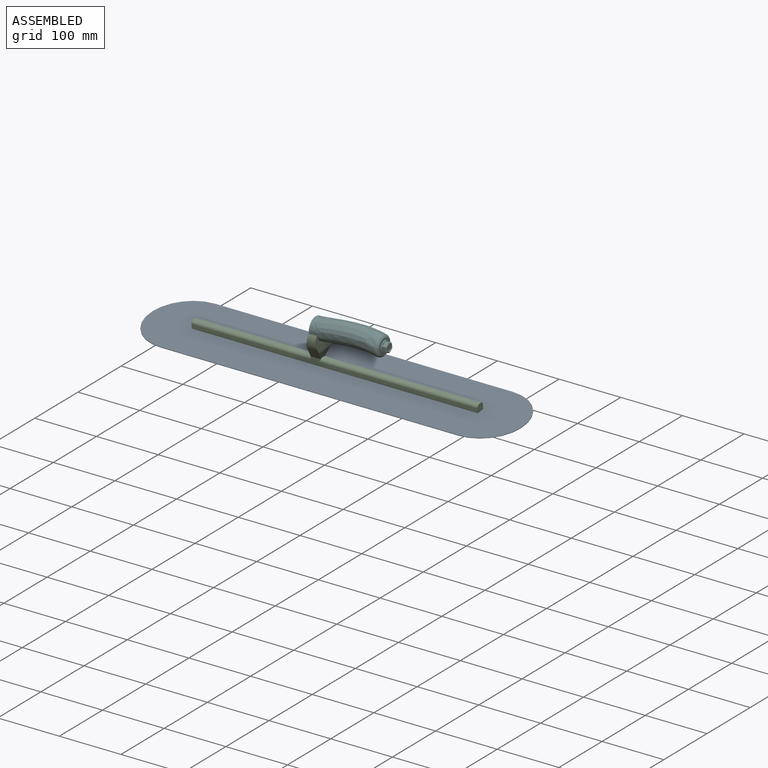
[diagram: assembled view]
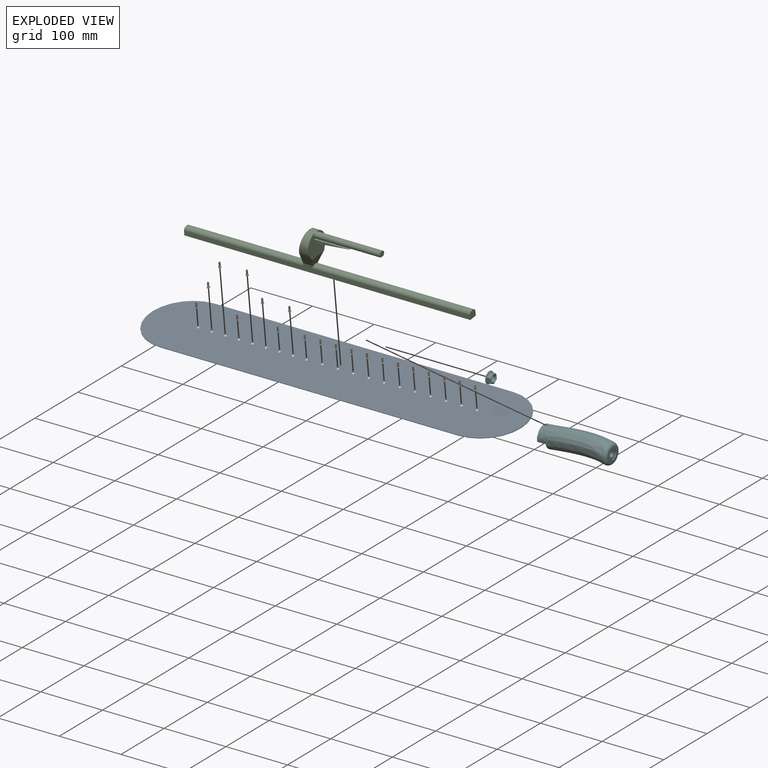
[diagram: exploded view]
GUIDED TOUR — MATED ASSEMBLY (Onshape document fba0291dfb014aeca8c67f5f, AutoMate assembly fba0291dfb014aeca8c67f5f_99a15173166ce8c87920e381_18682e446f5ed5937e0a8708_default)

This assembly has 24 components, labeled P0..P23 below (a component is one placed occurrence of a part; the same part can appear more than once), held together by 24 mates. A mate is a constraint between two components; its type names the relative motion it leaves free:
  FASTENED — locks the two components together rigidly (no relative motion),
  PLANAR — leaves sliding in the plane through the listed point (normal = the listed direction) and rotation about that normal free.
Axis/direction vectors are unit vectors and 'through' points are millimeter coordinates, both in the assembly's world frame.

MATES
  1. FASTENED "Fastened 14": P23 <-> P16, direction (0.000, 0.120, -0.993) through (50.55, 44.57, 3.32) mm
  2. FASTENED "Fastened 15": P6 <-> P16, direction (0.000, 0.120, -0.993) through (75.56, 44.57, 3.32) mm
  3. FASTENED "Fastened 22": P13 <-> P18, direction (-0.985, -0.021, 0.172) through (-32.74, 39.36, 46.24) mm
  4. FASTENED "Fastened 1": P18 <-> P16, direction (0.000, 0.120, -0.993) through (-226.16, 44.46, 4.23) mm
  5. FASTENED "Fastened 4": P9 <-> P16, direction (0.000, 0.120, -0.993) through (-182.09, 44.57, 3.32) mm
  6. FASTENED "Fastened 2": P0 <-> P16, direction (0.000, 0.120, -0.993) through (-226.16, 44.57, 3.32) mm
  7. FASTENED "Fastened 19": P22 <-> P16, direction (0.000, 0.120, -0.993) through (175.87, 44.57, 3.32) mm
  8. FASTENED "Fastened 11": P2 <-> P16, direction (0.000, 0.120, -0.993) through (-24.96, 44.57, 3.32) mm
  9. FASTENED "Fastened 13": P14 <-> P16, direction (0.000, 0.120, -0.993) through (25.45, 44.57, 3.32) mm
  10. FASTENED "Fastened 3": P4 <-> P16, direction (0.000, 0.120, -0.993) through (-203.80, 44.57, 3.32) mm
  11. FASTENED "Fastened 5": P7 <-> P16, direction (0.000, 0.120, -0.993) through (-159.91, 44.57, 3.32) mm
  12. FASTENED "Fastened 18": P20 <-> P16, direction (0.000, 0.120, -0.993) through (150.83, 44.57, 3.32) mm
  13. FASTENED "Fastened 12": P19 <-> P16, direction (0.000, 0.120, -0.993) through (0.18, 44.57, 3.32) mm
  14. FASTENED "Fastened 20": P1 <-> P16, direction (0.000, 0.120, -0.993) through (200.94, 44.57, 3.32) mm
  15. PLANAR "Planar 1": P18 <-> P16, direction (0.000, 0.120, -0.993) through (-0.25, 44.46, 4.23) mm
  16. FASTENED "Fastened 6": P17 <-> P16, direction (0.000, 0.120, -0.993) through (-137.66, 44.57, 3.32) mm
  17. FASTENED "Fastened 17": P15 <-> P16, direction (0.000, 0.120, -0.993) through (125.53, 44.57, 3.32) mm
  18. FASTENED "Fastened 16": P3 <-> P16, direction (0.000, 0.120, -0.993) through (100.86, 44.57, 3.32) mm
  19. FASTENED "Fastened 7": P11 <-> P16, direction (0.000, 0.120, -0.993) through (-116.05, 44.57, 3.32) mm
  20. FASTENED "Fastened 23": P21 <-> P13, direction (-1.000, 0.000, 0.000) through (81.15, 37.55, 61.23) mm
  21. FASTENED "Fastened 10": P5 <-> P16, direction (0.000, 0.120, -0.993) through (-50.18, 44.57, 3.32) mm
  22. FASTENED "Fastened 21": P12 <-> P16, direction (0.000, 0.120, -0.993) through (226.14, 44.57, 3.32) mm
  23. FASTENED "Fastened 9": P10 <-> P16, direction (0.000, 0.120, -0.993) through (-71.93, 44.57, 3.32) mm
  24. FASTENED "Fastened 8": P8 <-> P16, direction (0.000, 0.120, -0.993) through (-94.00, 44.57, 3.32) mm

ASSEMBLY ORDER
  1. P18 — the base component [order heuristic]
  2. P13 — core [order heuristic]
  3. P21 [order verified]
  4. P23 [order verified]
  5. P19 [order verified]
  6. P5 [order verified]
  7. P4 [order verified]
  8. P2 [order verified]
  9. P15 [order verified]
  10. P14 [order verified]
  11. P1 [order verified]
  12. P12 [order verified]
  13. P10 [order verified]
  14. P22 [order verified]
  15. P20 [order verified]
  16. P17 [order verified]
  17. P11 [order verified]
  18. P8 [order verified]
  19. P7 [order verified]
  20. P6 [order verified]
  21. P3 [order verified]
  22. P0 [order verified]
  23. P9 [order verified]
  24. P16 [order verified]
(P2, P4, P5, P19, P21, P23 verified with a relaxed clearance tolerance: the source model stores slight part interference there.)
Order-tag legend:
  [order verified] — this step's position reverses a verified removal order: the component was checked to insert without passing through the ones already placed.
  [order heuristic] — the first 2 components form the assembly's core: parts whose collision-free extraction could not be verified, listed in mate-graph order.

Of the 24 components, 2 carry the full construction recipe — the FeatureScript program that regenerates the part's solid from scratch; the rest are supplied as boundary geometry only.
Because this assembly has more than 12 components, the tour below covers the 12 most significant ones individually (every recipe-attached component first, then the largest by part volume), in assembly order; the remaining 12 are summarized together in a grouped section at the end.
Each toured component is shown spotlighted twice — in the assembled view, then in the exploded view, where a leader line traces a displaced component back to its assembled socket (saturated green if recipe-attached, orange if geometry-only; every other component desaturated gray) — followed by its recipe or geometry summary and the mates that hold it.
NOTE — this tour is split across 2 documents so each fits a 32k-token context. This is document 1: the component sections continue in the remaining 1 document, each repeating the header above.
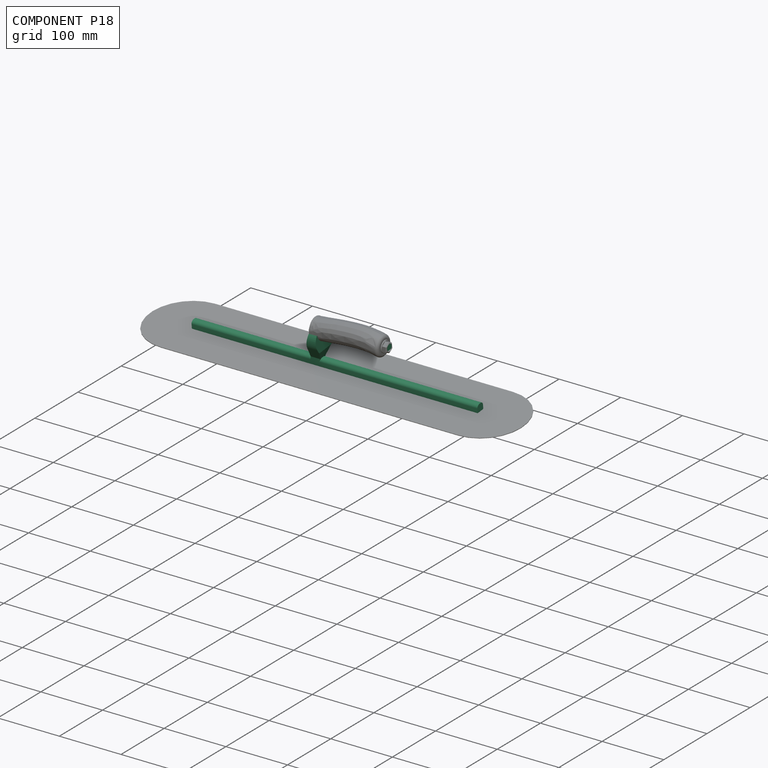
[diagram: component P18 — assembled]
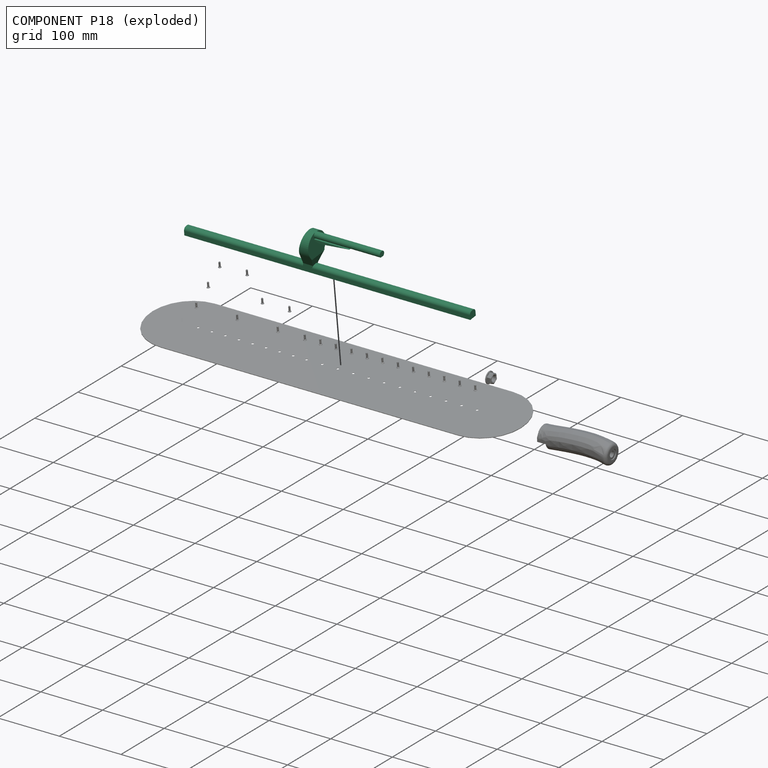
[diagram: component P18 — exploded]
COMPONENT P18 — recipe-attached (CADFS 00134732, mesh-verified: the recipe's output STEP matches this component's geometry to below the mesh-comparison resolution (tessellation chordal tolerance ~0.704 mm)).
Held by: FASTENED mate "Fastened 22" to P13; FASTENED mate "Fastened 1" to P16; PLANAR mate "Planar 1" to P16.
Construction recipe (FeatureScript — the CAD program that rebuilds this solid; sketch coordinates are in the units given by the * unit suffixes, e.g. mm):

FeatureScript 1511;
import(path : "onshape/std/geometry.fs", version : "1511.0");
import(path : "onshape/std/common.fs", version : "1511.0");
const mm = millimeter;
const VERTEX = EntityType.VERTEX;
const EDGE = EntityType.EDGE;
const FACE = EntityType.FACE;
const BODY = EntityType.BODY;
function v(x, y){return vector(x, y);}
function OD(order){return orderDisambiguation(order);}
function OSD(set){return originalSetDisambiguation(set);}
function TD(topology){return topologyDisambiguation(topology);}
function TDD(query){return trueDependencyDisambiguation(query);}
function sQuery(a, b, c) {return sketchEntityQuery(a, b, c);}

annotation { "Feature Type Name" : "Feature", "Feature Type Description" : "" }
export const myFeature = defineFeature(function(context is Context, id is Id, definition is map)
    precondition{}
    {
        {
            var Q0;
            Q0=qCreatedBy(makeId("Front.planeOp"),FACE);
            var sketch = newSketch(context, id + "F0", { "sketchPlane" : qUnion([Q0])});
            skLineSegment(sketch, "E0.bottom", {"start": v(-231.77, 0) * mm, "end": v(231.77, 0) * mm});
            skLineSegment(sketch, "E0.top", {"start": v(-231.78, 11.84) * mm, "end": v(231.78, 11.84) * mm});
            skLineSegment(sketch, "E0.left", {"start": v(-231.78, 0) * mm, "end": v(-231.78, 11.84) * mm});
            skLineSegment(sketch, "E0.right", {"start": v(231.78, 0) * mm, "end": v(231.78, 11.84) * mm});
            skSolve(sketch);
        }
        {
            var Q0;
            Q0 = qSketchRegion(id + "F0", true);
            extrude(context, id + "F1", {"entities" : qUnion([Q0]), "depth" : 6.48 * mm, "hasSecondDirection" : true, "secondDirectionOppositeDirection" : true, "secondDirectionDepth" : 6.48 * mm});
        }
        {
            var Q0;
            Q0=qCreatedBy(makeId("Right.planeOp"),FACE);
            cPlane(context, id + "F2", {"entities" : qUnion([Q0]), "cplaneType" : CPlaneType.OFFSET, "offset" : 38.1 * mm, "oppositeDirection" : true, "width" : 152.4 * mm, "height" : 152.4 * mm});
        }
        {
            var Q0;
            Q0=qCreatedBy(id+"F2.planeOp",FACE);
            var sketch = newSketch(context, id + "F3", { "sketchPlane" : qUnion([Q0])});
            skLineSegment(sketch, "E1", {"start": v(6.48, 0) * mm, "end": v(-6.48, 0) * mm, "construction": true});
            skLineSegment(sketch, "E2", {"start": v(-6.48, 0) * mm, "end": v(-6.48, 11.84) * mm, "construction": true});
            skLineSegment(sketch, "E3", {"start": v(-6.48, 11.84) * mm, "end": v(6.48, 11.84) * mm, "construction": true});
            skLineSegment(sketch, "E4", {"start": v(6.48, 11.84) * mm, "end": v(6.48, 0) * mm, "construction": true});
            skLineSegment(sketch, "E5", {"start": v(0, 0) * mm, "end": v(-17.82, 32.57) * mm});
            skLineSegment(sketch, "E6", {"start": v(0, 0) * mm, "end": v(17.82, 32.57) * mm});
            skLineSegment(sketch, "E7", {"start": v(0, 0) * mm, "end": v(0, 62.64) * mm, "construction": true});
            skPoint(sketch, "E7.endSnap0", {"position": v(0, 11.84) * mm});
            skArc(sketch, "E8", {"start": v(17.82, 32.57) * mm, "mid": v(0, 62.64) * mm, "end": v(-17.82, 32.57) * mm});
            skSolve(sketch);
        }
        {
            var Q0;
            Q0 = qSketchRegion(id + "F3", true);
            extrude(context, id + "F4", {"entities" : qUnion([Q0]), "operationType" : NewBodyOperationType.ADD, "depth" : 127 * mm});
        }
        {
            var Q0;
            Q0=qCreatedBy(makeId("Front.planeOp"),FACE);
            var sketch = newSketch(context, id + "F5", { "sketchPlane" : qUnion([Q0])});
            skLineSegment(sketch, "E9", {"start": v(0, 0) * mm, "end": v(-38.1, 0) * mm, "construction": true});
            skLineSegment(sketch, "E10", {"start": v(-38.1, 0) * mm, "end": v(-38.1, 11.84) * mm, "construction": true});
            skLineSegment(sketch, "E11", {"start": v(-38.1, 11.84) * mm, "end": v(-29.14, 62.64) * mm});
            skLineSegment(sketch, "E12", {"start": v(-29.14, 62.64) * mm, "end": v(-38.1, 62.64) * mm});
            skLineSegment(sketch, "E13", {"start": v(-38.1, 11.84) * mm, "end": v(-22.86, 11.84) * mm, "construction": true});
            skLineSegment(sketch, "E14", {"start": v(-22.86, 11.84) * mm, "end": v(-9.4, 48.83) * mm});
            skLineSegment(sketch, "E15", {"start": v(88.9, 62.64) * mm, "end": v(88.9, 54.25) * mm, "construction": true});
            skLineSegment(sketch, "E16", {"start": v(88.9, 58.45) * mm, "end": v(38.1, 58.45) * mm, "construction": true});
            skLineSegment(sketch, "E17", {"start": v(88.9, 54.25) * mm, "end": v(38.1, 53.6) * mm});
            skLineSegment(sketch, "E18", {"start": v(38.1, 53.6) * mm, "end": v(-9.4, 48.83) * mm});
            skLineSegment(sketch, "E19", {"start": v(-38.1, 11.84) * mm, "end": v(88.9, 11.84) * mm, "construction": true});
            skPoint(sketch, "E19.endSnap0", {"position": v(-30.48, 11.84) * mm});
            skLineSegment(sketch, "E20", {"start": v(88.9, 11.84) * mm, "end": v(88.9, 54.25) * mm, "construction": true});
            skLineSegment(sketch, "E21", {"start": v(88.9, 54.25) * mm, "end": v(88.9, 11.84) * mm});
            skLineSegment(sketch, "E22", {"start": v(-38.1, 62.64) * mm, "end": v(-38.1, 11.84) * mm});
            skLineSegment(sketch, "E23", {"start": v(-22.86, 11.84) * mm, "end": v(88.9, 11.84) * mm});
            skSolve(sketch);
        }
        {
            var Q0;
            Q0 = qSketchRegion(id + "F5", true);
            extrude(context, id + "F6", {"entities" : qUnion([Q0]), "operationType" : NewBodyOperationType.REMOVE, "endBound" : BoundingType.THROUGH_ALL, "oppositeDirection" : true, "depth" : 25.4 * mm, "hasSecondDirection" : true, "secondDirectionBound" : SecondDirectionBoundingType.THROUGH_ALL, "secondDirectionOppositeDirection" : false, "secondDirectionDepth" : 25.4 * mm});
        }
        {
            var Q0;
            Q0=makeQuery(id+"F4.opExtrude","CAP_FACE",FACE,{"disambiguationData":[OSD([sQuery(id+"F3.wireOp",EDGE,"E5"),sQuery(id+"F3.wireOp",EDGE,"E6"),sQuery(id+"F3.wireOp",EDGE,"E8")])],"isStart":false});
            var sketch = newSketch(context, id + "F7", { "sketchPlane" : qUnion([Q0])});
            skArc(sketch, "E24", {"start": v(-0.76, 62.62) * mm, "mid": v(0, 22) * mm, "end": v(0.76, 62.62) * mm});
            skLineSegment(sketch, "E25", {"start": v(-16.88, 53.62) * mm, "end": v(-0.67, 53.62) * mm});
            skArc(sketch, "E26", {"start": v(-0.76, 62.62) * mm, "mid": v(-5.17, 58.08) * mm, "end": v(-0.67, 53.62) * mm});
            skArc(sketch, "E27", {"start": v(0.67, 53.62) * mm, "mid": v(5.17, 58.08) * mm, "end": v(0.76, 62.62) * mm});
            skLineSegment(sketch, "E28.trimOffspring", {"start": v(0.67, 53.62) * mm, "end": v(16.88, 53.62) * mm});
            skPoint(sketch, "E29.start.orphan", {"position": v(0, 53.62) * mm});
            skPoint(sketch, "E30.start.orphan", {"position": v(0, 62.64) * mm});
            skSolve(sketch);
        }
        {
            var Q0;
            Q0 = qSketchRegion(id + "F7", true);
            extrude(context, id + "F8", {"entities" : qUnion([Q0]), "operationType" : NewBodyOperationType.REMOVE, "oppositeDirection" : true, "depth" : 106.68 * mm});
        }
        {
            var Q0;
            {var subQ0=sQuery(id+"F3.wireOp",EDGE,"E5");var subQ1=sQuery(id+"F0.wireOp",EDGE,"E0.left");var subQ2=sQuery(id+"F0.wireOp",EDGE,"E0.top");Q0=makeQuery(id+"F4.boolean.opBoolean","SPLIT",EDGE,{"disambiguationData":[TD([makeQuery(id+"F1.opExtrude","CAP_FACE",FACE,{"disambiguationData":[OSD([sQuery(id+"F0.wireOp",EDGE,"E0.bottom"),subQ2,subQ1,sQuery(id+"F0.wireOp",EDGE,"E0.right")])],"isStart":false}),makeQuery(id+"F1.opExtrude","SWEPT_FACE",FACE,{"disambiguationData":[OSD([subQ2])]}),makeQuery(id+"F1.opExtrude","SWEPT_FACE",FACE,{"disambiguationData":[OSD([subQ1])]}),makeQuery(id+"F4.opExtrude","SWEPT_FACE",FACE,{"disambiguationData":[OSD([subQ0])]}),makeQuery(id+"F4.opExtrude","CAP_FACE",FACE,{"disambiguationData":[OSD([subQ0,sQuery(id+"F3.wireOp",EDGE,"E6"),sQuery(id+"F3.wireOp",EDGE,"E8")])],"isStart":true})])],"derivedFrom":makeQuery(id+"F1.opExtrude","CAP_EDGE",EDGE,{"disambiguationData":[OSD([subQ2])],"isStart":false})});}
            var Q1;
            {var subQ0=sQuery(id+"F3.wireOp",EDGE,"E6");var subQ1=sQuery(id+"F0.wireOp",EDGE,"E0.left");var subQ2=sQuery(id+"F0.wireOp",EDGE,"E0.top");Q1=makeQuery(id+"F4.boolean.opBoolean","SPLIT",EDGE,{"disambiguationData":[TD([makeQuery(id+"F1.opExtrude","CAP_FACE",FACE,{"disambiguationData":[OSD([sQuery(id+"F0.wireOp",EDGE,"E0.bottom"),subQ2,subQ1,sQuery(id+"F0.wireOp",EDGE,"E0.right")])],"isStart":true}),makeQuery(id+"F1.opExtrude","SWEPT_FACE",FACE,{"disambiguationData":[OSD([subQ2])]}),makeQuery(id+"F1.opExtrude","SWEPT_FACE",FACE,{"disambiguationData":[OSD([subQ1])]}),makeQuery(id+"F4.opExtrude","CAP_FACE",FACE,{"disambiguationData":[OSD([sQuery(id+"F3.wireOp",EDGE,"E5"),subQ0,sQuery(id+"F3.wireOp",EDGE,"E8")])],"isStart":true}),makeQuery(id+"F4.opExtrude","SWEPT_FACE",FACE,{"disambiguationData":[OSD([subQ0])]})])],"derivedFrom":makeQuery(id+"F1.opExtrude","CAP_EDGE",EDGE,{"disambiguationData":[OSD([subQ2])],"isStart":true})});}
            var Q2;
            {var subQ0=sQuery(id+"F3.wireOp",EDGE,"E8");var subQ1=sQuery(id+"F3.wireOp",EDGE,"E6");var subQ2=sQuery(id+"F3.wireOp",EDGE,"E5");var subQ3=sQuery(id+"F0.wireOp",EDGE,"E0.right");var subQ4=sQuery(id+"F0.wireOp",EDGE,"E0.top");var subQ5=makeQuery(id+"F1.opExtrude","CAP_FACE",FACE,{"disambiguationData":[OSD([sQuery(id+"F0.wireOp",EDGE,"E0.bottom"),subQ4,sQuery(id+"F0.wireOp",EDGE,"E0.left"),subQ3])],"isStart":false});var subQ6=makeQuery(id+"F4.opExtrude","SWEPT_FACE",FACE,{"disambiguationData":[OSD([subQ2])]});var subQ7=makeQuery(id+"F1.opExtrude","SWEPT_FACE",FACE,{"disambiguationData":[OSD([subQ4])]});var subQ8=makeQuery(id+"F4.opExtrude","CAP_FACE",FACE,{"disambiguationData":[OSD([subQ2,subQ1,subQ0])],"isStart":false});var subQ9=makeQuery(id+"F1.opExtrude","CAP_EDGE",EDGE,{"disambiguationData":[OSD([subQ4])],"isStart":false});Q2=makeQuery(id+"F6.boolean.opBoolean","MERGE",EDGE,{"derivedFrom":[makeQuery(id+"F4.boolean.opBoolean","SPLIT",EDGE,{"disambiguationData":[TD([subQ5,subQ7,makeQuery(id+"F1.opExtrude","SWEPT_FACE",FACE,{"disambiguationData":[OSD([subQ3])]}),subQ6,subQ8])],"derivedFrom":subQ9}),makeQuery(id+"F4.boolean.opBoolean","SPLIT",EDGE,{"disambiguationData":[TD([subQ5,subQ7,subQ6,makeQuery(id+"F4.opExtrude","CAP_FACE",FACE,{"disambiguationData":[OSD([subQ2,subQ1,subQ0])],"isStart":true}),subQ8])],"derivedFrom":subQ9})]});}
            var Q3;
            {var subQ0=sQuery(id+"F3.wireOp",EDGE,"E8");var subQ1=sQuery(id+"F3.wireOp",EDGE,"E6");var subQ2=sQuery(id+"F3.wireOp",EDGE,"E5");var subQ3=makeQuery(id+"F4.opExtrude","CAP_FACE",FACE,{"disambiguationData":[OSD([subQ2,subQ1,subQ0])],"isStart":false});var subQ4=sQuery(id+"F0.wireOp",EDGE,"E0.top");var subQ5=makeQuery(id+"F1.opExtrude","SWEPT_FACE",FACE,{"disambiguationData":[OSD([subQ4])]});var subQ6=sQuery(id+"F0.wireOp",EDGE,"E0.right");var subQ7=makeQuery(id+"F1.opExtrude","CAP_FACE",FACE,{"disambiguationData":[OSD([sQuery(id+"F0.wireOp",EDGE,"E0.bottom"),subQ4,sQuery(id+"F0.wireOp",EDGE,"E0.left"),subQ6])],"isStart":true});var subQ8=makeQuery(id+"F4.opExtrude","SWEPT_FACE",FACE,{"disambiguationData":[OSD([subQ1])]});var subQ9=makeQuery(id+"F1.opExtrude","CAP_EDGE",EDGE,{"disambiguationData":[OSD([subQ4])],"isStart":true});Q3=makeQuery(id+"F6.boolean.opBoolean","MERGE",EDGE,{"derivedFrom":[makeQuery(id+"F4.boolean.opBoolean","SPLIT",EDGE,{"disambiguationData":[TD([subQ7,subQ5,makeQuery(id+"F1.opExtrude","SWEPT_FACE",FACE,{"disambiguationData":[OSD([subQ6])]}),subQ3,subQ8])],"derivedFrom":subQ9}),makeQuery(id+"F4.boolean.opBoolean","SPLIT",EDGE,{"disambiguationData":[TD([subQ7,subQ5,makeQuery(id+"F4.opExtrude","CAP_FACE",FACE,{"disambiguationData":[OSD([subQ2,subQ1,subQ0])],"isStart":true}),subQ3,subQ8])],"derivedFrom":subQ9})]});}
            fillet(context, id + "F9", {"entities" : qUnion([Q0, Q1, Q2, Q3]), "radius" : 5.08 * mm, "tangentPropagation" : true, "allowEdgeOverflow" : false});
        }
        {
            var Q0;
            Q0=makeQuery(id+"F1.opExtrude","SWEPT_FACE",FACE,{"disambiguationData":[OSD([sQuery(id+"F0.wireOp",EDGE,"E0.bottom")])]});
            var sketch = newSketch(context, id + "F10", { "sketchPlane" : qUnion([Q0])});
            skPoint(sketch, "E31", {"position": v(24.94, 0) * mm});
            skPoint(sketch, "E32", {"position": v(50.16, 0) * mm});
            skPoint(sketch, "E33", {"position": v(71.9, 0) * mm});
            skPoint(sketch, "E34", {"position": v(93.98, 0) * mm});
            skPoint(sketch, "E35", {"position": v(116.02, 0) * mm});
            skPoint(sketch, "E36", {"position": v(137.64, 0) * mm});
            skPoint(sketch, "E37", {"position": v(159.9, 0) * mm});
            skPoint(sketch, "E38", {"position": v(182.07, 0) * mm});
            skPoint(sketch, "E39", {"position": v(203.78, 0) * mm});
            skPoint(sketch, "E40", {"position": v(226.14, 0) * mm});
            skPoint(sketch, "E41", {"position": v(-0.2, 0) * mm});
            skPoint(sketch, "E42", {"position": v(-25.48, 0) * mm});
            skPoint(sketch, "E43", {"position": v(-150.83, 0) * mm});
            skPoint(sketch, "E44", {"position": v(-50.58, 0) * mm});
            skPoint(sketch, "E45", {"position": v(-226.14, 0) * mm});
            skPoint(sketch, "E46", {"position": v(-75.58, 0) * mm});
            skPoint(sketch, "E47", {"position": v(-200.94, 0) * mm});
            skPoint(sketch, "E48", {"position": v(-100.87, 0) * mm});
            skPoint(sketch, "E49", {"position": v(-175.88, 0) * mm});
            skPoint(sketch, "E50", {"position": v(-125.53, 0) * mm});
            skLineSegment(sketch, "E51.0", {"start": v(231.77, 6.93) * mm, "end": v(231.77, -6.02) * mm, "construction": true});
            skLineSegment(sketch, "E52.0", {"start": v(231.77, 6.48) * mm, "end": v(231.77, -6.48) * mm, "construction": true});
            skLineSegment(sketch, "E53.0", {"start": v(-231.77, 6.48) * mm, "end": v(231.77, 6.48) * mm, "construction": true});
            skLineSegment(sketch, "E54.0", {"start": v(-231.77, -6.48) * mm, "end": v(231.77, -6.48) * mm, "construction": true});
            skSolve(sketch);
        }
        {
            var Q0;
            Q0=sQuery(id+"F10.wireOp",VERTEX,"E45");
            var Q1;
            Q1=sQuery(id+"F10.wireOp",VERTEX,"E47");
            var Q2;
            Q2=sQuery(id+"F10.wireOp",VERTEX,"E49");
            var Q3;
            Q3=sQuery(id+"F10.wireOp",VERTEX,"E43");
            var Q4;
            Q4=sQuery(id+"F10.wireOp",VERTEX,"E50");
            var Q5;
            Q5=sQuery(id+"F10.wireOp",VERTEX,"E48");
            var Q6;
            Q6=sQuery(id+"F10.wireOp",VERTEX,"E46");
            var Q7;
            Q7=sQuery(id+"F10.wireOp",VERTEX,"E44");
            var Q8;
            Q8=sQuery(id+"F10.wireOp",VERTEX,"E42");
            var Q9;
            Q9=sQuery(id+"F10.wireOp",VERTEX,"E41");
            var Q10;
            Q10=sQuery(id+"F10.wireOp",VERTEX,"E31");
            var Q11;
            Q11=sQuery(id+"F10.wireOp",VERTEX,"E32");
            var Q12;
            Q12=sQuery(id+"F10.wireOp",VERTEX,"E33");
            var Q13;
            Q13=sQuery(id+"F10.wireOp",VERTEX,"E34");
            var Q14;
            Q14=sQuery(id+"F10.wireOp",VERTEX,"E35");
            var Q15;
            Q15=sQuery(id+"F10.wireOp",VERTEX,"E36");
            var Q16;
            Q16=sQuery(id+"F10.wireOp",VERTEX,"E37");
            var Q17;
            Q17=sQuery(id+"F10.wireOp",VERTEX,"E38");
            var Q18;
            Q18=sQuery(id+"F10.wireOp",VERTEX,"E39");
            var Q19;
            Q19=sQuery(id+"F10.wireOp",VERTEX,"E40");
            var Q20;
            Q20=makeQuery(id+"F1.opExtrude","SWEPT_BODY",BODY,{"disambiguationData":[OSD([sQuery(id+"F0.wireOp",EDGE,"E0.bottom"),sQuery(id+"F0.wireOp",EDGE,"E0.top"),sQuery(id+"F0.wireOp",EDGE,"E0.left"),sQuery(id+"F0.wireOp",EDGE,"E0.right")])]});
            hole(context, id + "F11", {"style" : HoleStyle.SIMPLE, "endStyle" : HoleEndStyle.BLIND, "holeDiameter" : 3.56 * mm, "majorDiameter" : 6.35 * mm, "holeDepth" : 5.08 * mm, "locations" : qUnion([Q0, Q1, Q2, Q3, Q4, Q5, Q6, Q7, Q8, Q9, Q10, Q11, Q12, Q13, Q14, Q15, Q16, Q17, Q18, Q19]), "scope" : qUnion([Q20]), "tappedDepth" : 12.7 * mm, "tapClearance" : 3});
        }
        {
            var Q0;
            Q0=makeQuery(id+"F8.boolean.opBoolean","COPY",FACE,{"derivedFrom":makeQuery(id+"F8.opExtrude","SWEPT_FACE",FACE,{"disambiguationData":[OSD([sQuery(id+"F7.wireOp",EDGE,"E25")])]})});
            var sketch = newSketch(context, id + "F12", { "sketchPlane" : qUnion([Q0])});
            skLineSegment(sketch, "E55", {"start": v(88.91, 5.18) * mm, "end": v(-17.77, 5.18) * mm, "construction": true});
            skLineSegment(sketch, "E56", {"start": v(-17.77, 5.18) * mm, "end": v(-17.77, 16.87) * mm, "construction": true});
            skLineSegment(sketch, "E57", {"start": v(-17.77, 16.87) * mm, "end": v(39.23, 16.87) * mm, "construction": true});
            skLineSegment(sketch, "E58", {"start": v(39.23, 16.87) * mm, "end": v(39.23, 5.18) * mm, "construction": true});
            skLineSegment(sketch, "E59.bottom", {"start": v(-17.77, 5.18) * mm, "end": v(39.28, 5.18) * mm});
            skLineSegment(sketch, "E59.top", {"start": v(-17.77, 29.45) * mm, "end": v(39.28, 29.45) * mm});
            skLineSegment(sketch, "E59.left", {"start": v(-17.77, 5.18) * mm, "end": v(-17.77, 29.45) * mm});
            skLineSegment(sketch, "E59.right", {"start": v(39.28, 5.18) * mm, "end": v(39.28, 29.45) * mm});
            skLineSegment(sketch, "E60.MirrorCS", {"start": v(-17.77, -29.45) * mm, "end": v(39.28, -29.45) * mm});
            skLineSegment(sketch, "E61.MirrorCS", {"start": v(39.28, -5.18) * mm, "end": v(39.28, -29.45) * mm});
            skLineSegment(sketch, "E62.MirrorCS", {"start": v(-17.77, -5.18) * mm, "end": v(-17.77, -29.45) * mm});
            skLineSegment(sketch, "E63.MirrorCS", {"start": v(88.91, -5.18) * mm, "end": v(-17.77, -5.18) * mm, "construction": true});
            skLineSegment(sketch, "E64", {"start": v(-17.77, -5.18) * mm, "end": v(39.28, -5.18) * mm});
            skSolve(sketch);
        }
        {
            var Q0;
            Q0 = qSketchRegion(id + "F12", true);
            extrude(context, id + "F13", {"entities" : qUnion([Q0]), "operationType" : NewBodyOperationType.REMOVE, "oppositeDirection" : true, "depth" : 25.4 * mm});
        }
        {
            var Q0;
            Q0=makeQuery(id+"F13.boolean.opBoolean","COPY",FACE,{"derivedFrom":makeQuery(id+"F13.opExtrude","SWEPT_FACE",FACE,{"disambiguationData":[OSD([sQuery(id+"F12.wireOp",EDGE,"E59.bottom")])]})});
            extrude(context, id + "F14", {"entities" : qUnion([Q0]), "operationType" : NewBodyOperationType.REMOVE, "oppositeDirection" : true, "depth" : 3.8 * mm});
        }
        {
            var Q0;
            Q0=makeQuery(id+"F6.boolean.opBoolean","COPY",FACE,{"derivedFrom":makeQuery(id+"F6.opExtrude","SWEPT_FACE",FACE,{"disambiguationData":[OSD([sQuery(id+"F5.wireOp",EDGE,"E14")])]})});
            var Q1;
            {var subQ0=sQuery(id+"F12.wireOp",EDGE,"E62.MirrorCS");Q1=makeQuery(id+"FAA1q4XDeRfOqSx_1.boolean.opBoolean","MERGE",FACE,{"derivedFrom":[makeQuery(id+"F13.boolean.opBoolean","COPY",FACE,{"derivedFrom":makeQuery(id+"F13.opExtrude","SWEPT_FACE",FACE,{"disambiguationData":[OSD([subQ0])]})}),makeQuery(id+"FAA1q4XDeRfOqSx_1.opExtrude","SWEPT_FACE",FACE,{"disambiguationData":[OSD([subQ0,sQuery(id+"F12.wireOp",EDGE,"E64")])]})]});}
            extrude(context, id + "F15", {"entities" : qUnion([Q0]), "operationType" : NewBodyOperationType.REMOVE, "endBound" : BoundingType.UP_TO_SURFACE, "oppositeDirection" : true, "endBoundEntityFace" : qUnion([Q1]), "depth" : 25.4 * mm});
        }
    });
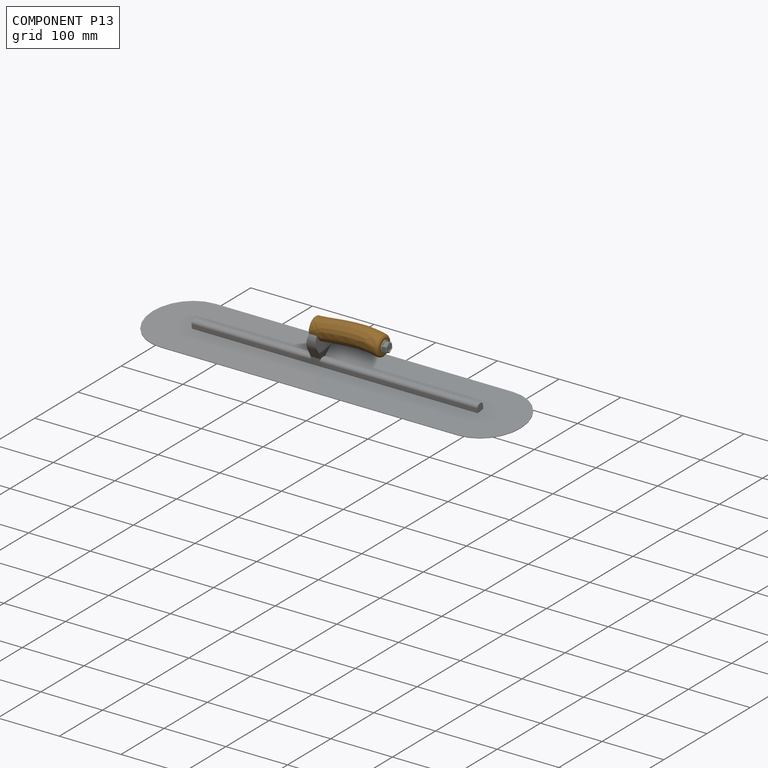
[diagram: component P13 — assembled]
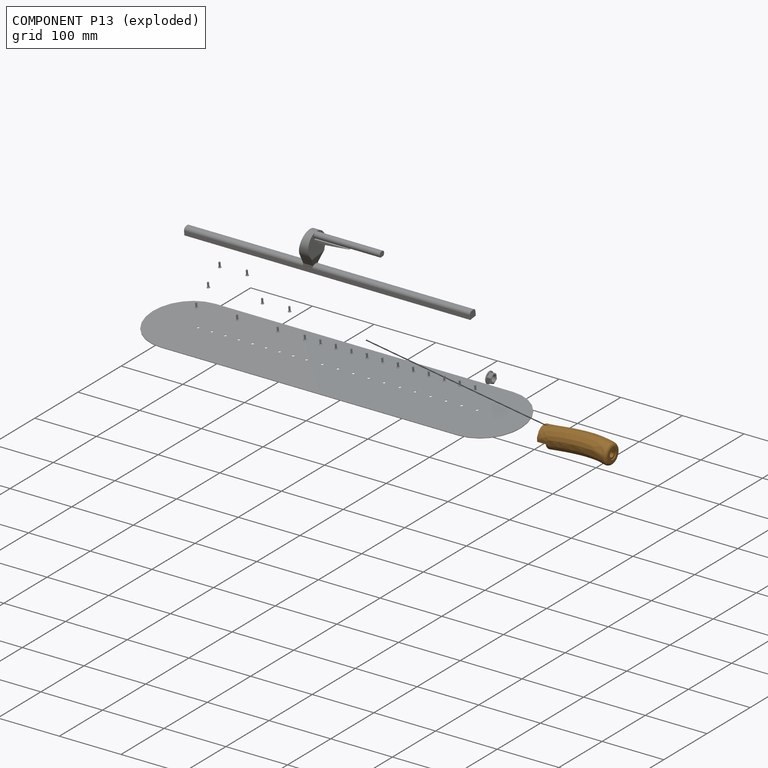
[diagram: component P13 — exploded]
COMPONENT P13 — geometry summary (no construction recipe available for this part):
  bounding box: 111.9 x 38.8 x 33.2 mm
  B-rep topology: 0 solids, 10 faces, 39 edges
  volume: 89827 mm^3 (62% of its bounding box)
  symmetry: mirror-symmetric across its y mid-plane
Held by: FASTENED mate "Fastened 22" to P18; FASTENED mate "Fastened 23" to P21.
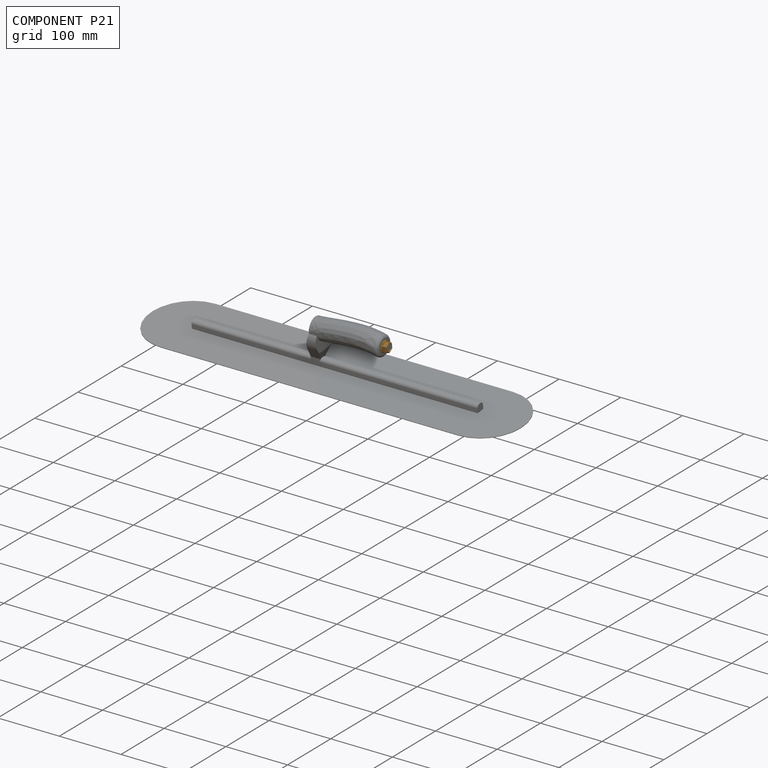
[diagram: component P21 — assembled]
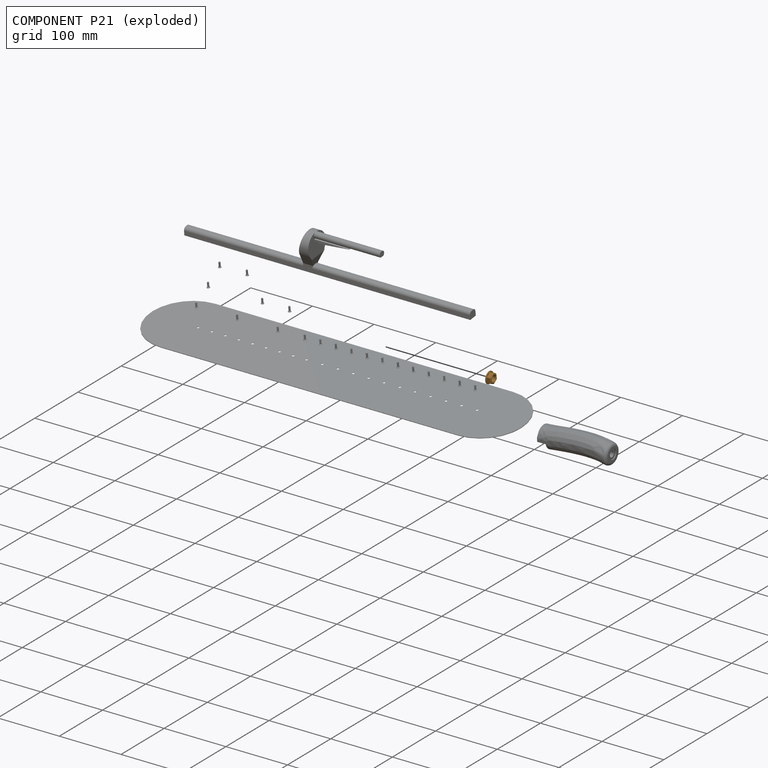
[diagram: component P21 — exploded]
COMPONENT P21 — geometry summary (no construction recipe available for this part):
  bounding box: 20.3 x 20.3 x 7.8 mm
  B-rep topology: 1 solid, 25 faces, 118 edges
  volume: 1025 mm^3 (32% of its bounding box)
  symmetry: 6-fold rotationally symmetric about the z axis; mirror-symmetric across its x mid-plane, y mid-plane
Held by: FASTENED mate "Fastened 23" to P13.
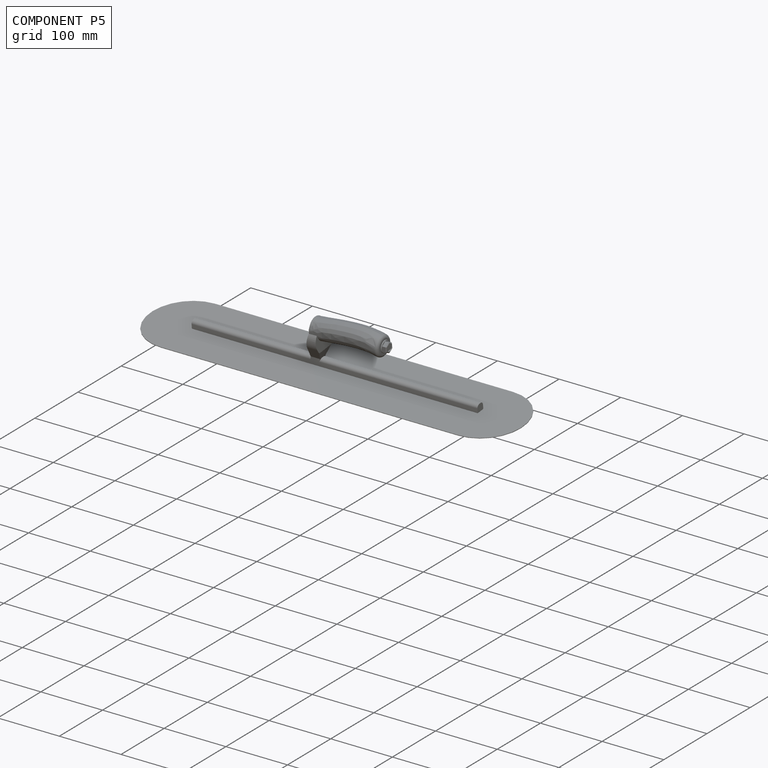
[diagram: component P5 — assembled]
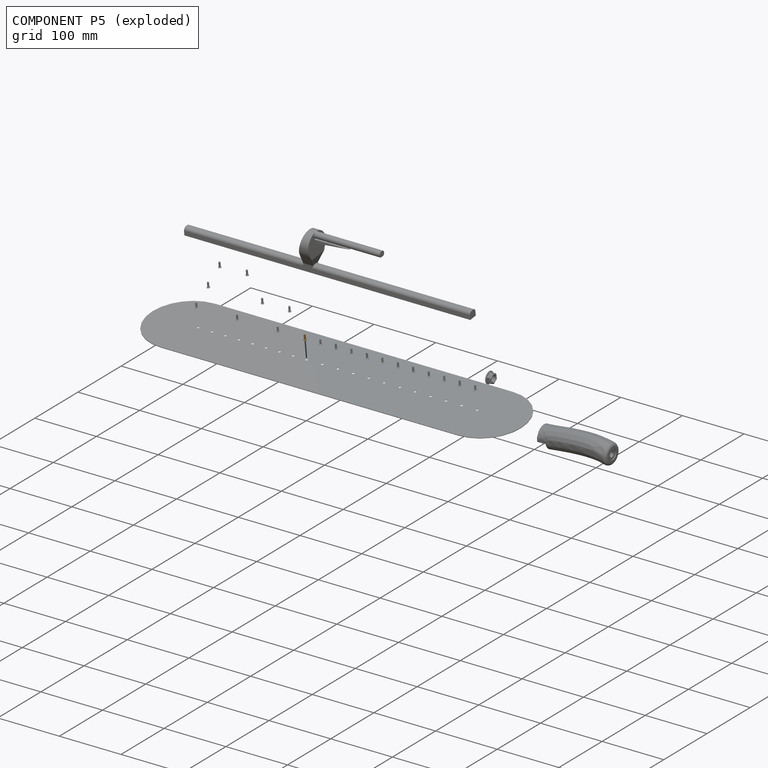
[diagram: component P5 — exploded]
COMPONENT P5 — geometry summary (no construction recipe available for this part):
  bounding box: 8.3 x 4.8 x 4.8 mm
  B-rep topology: 1 solid, 165 faces, 746 edges
  volume: 56 mm^3 (29% of its bounding box)
  symmetry: revolution-symmetric about the z axis through its bounding-box center; mirror-symmetric across its x mid-plane, y mid-plane
Held by: FASTENED mate "Fastened 10" to P16.
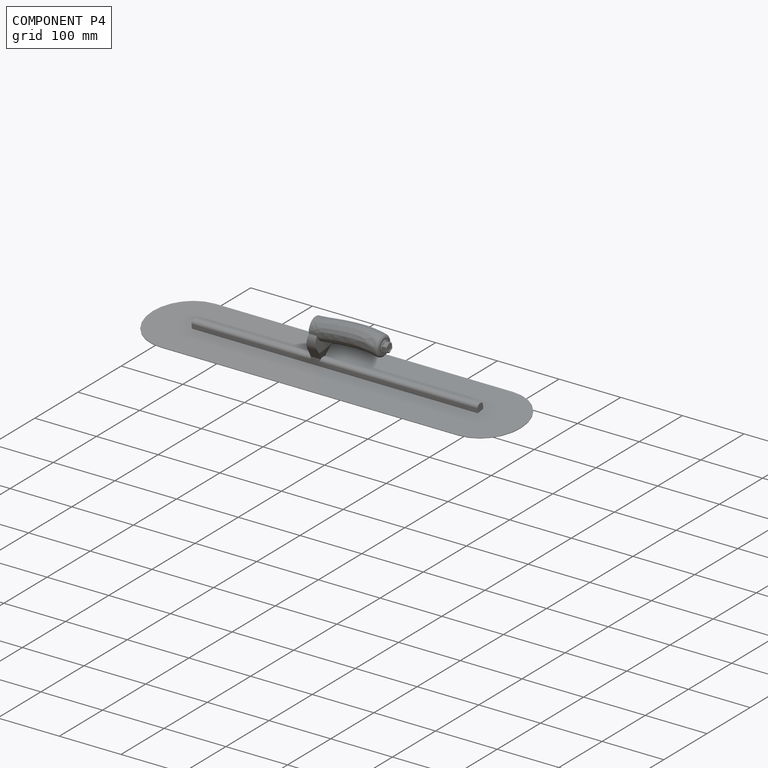
[diagram: component P4 — assembled]
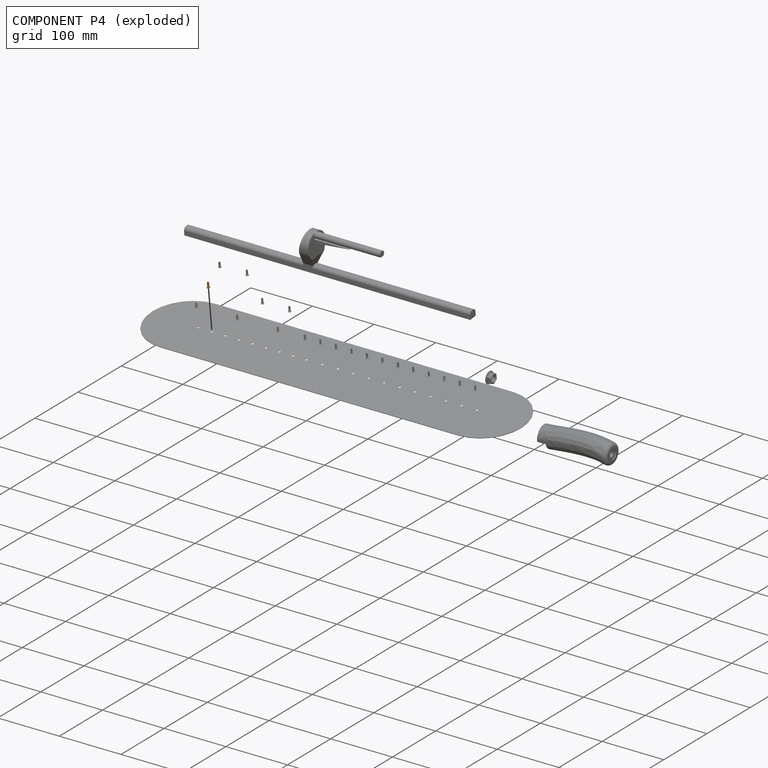
[diagram: component P4 — exploded]
COMPONENT P4 — geometry summary (no construction recipe available for this part):
  bounding box: 8.3 x 4.8 x 4.8 mm
  B-rep topology: 1 solid, 165 faces, 746 edges
  volume: 56 mm^3 (29% of its bounding box)
  symmetry: revolution-symmetric about the z axis through its bounding-box center; mirror-symmetric across its x mid-plane, y mid-plane
Held by: FASTENED mate "Fastened 3" to P16.
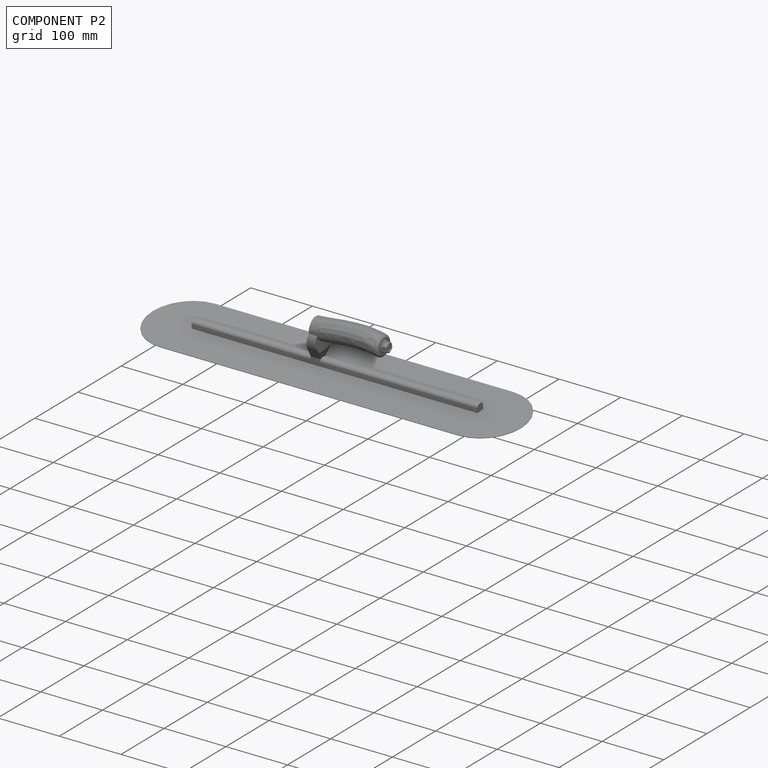
[diagram: component P2 — assembled]
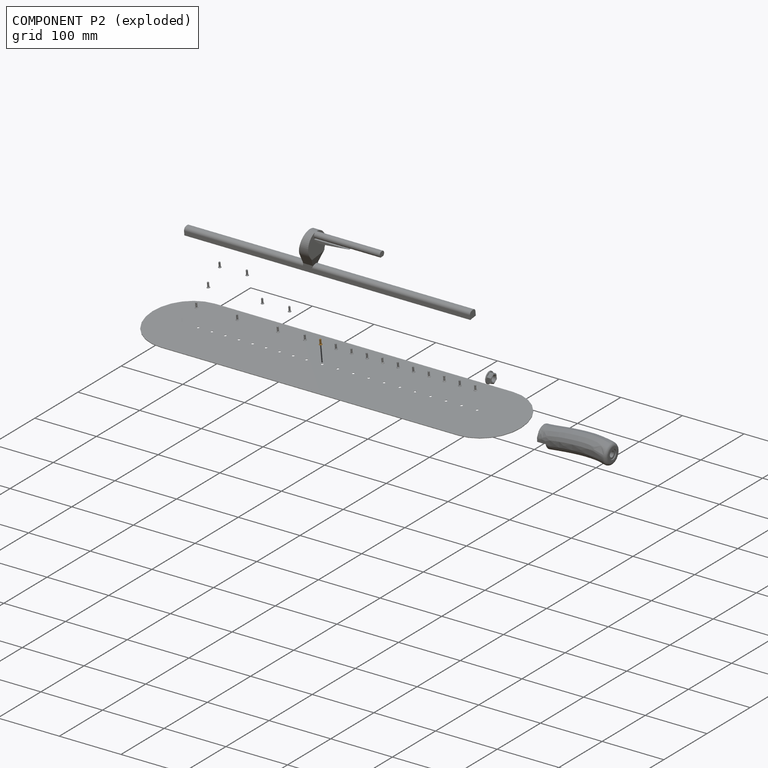
[diagram: component P2 — exploded]
COMPONENT P2 — geometry summary (no construction recipe available for this part):
  bounding box: 8.3 x 4.8 x 4.8 mm
  B-rep topology: 1 solid, 165 faces, 746 edges
  volume: 56 mm^3 (29% of its bounding box)
  symmetry: revolution-symmetric about the z axis through its bounding-box center; mirror-symmetric across its x mid-plane, y mid-plane
Held by: FASTENED mate "Fastened 11" to P16.
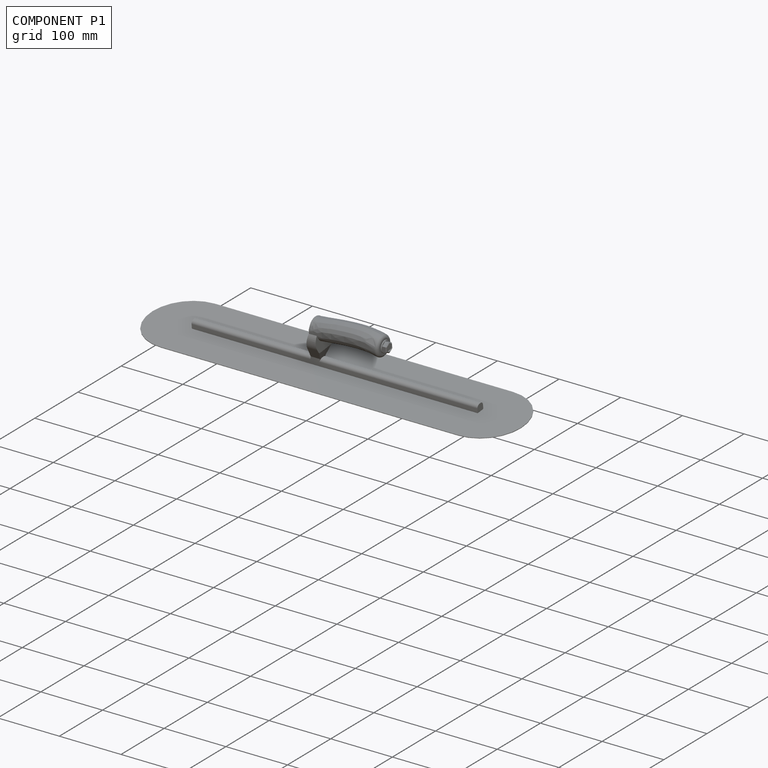
[diagram: component P1 — assembled]
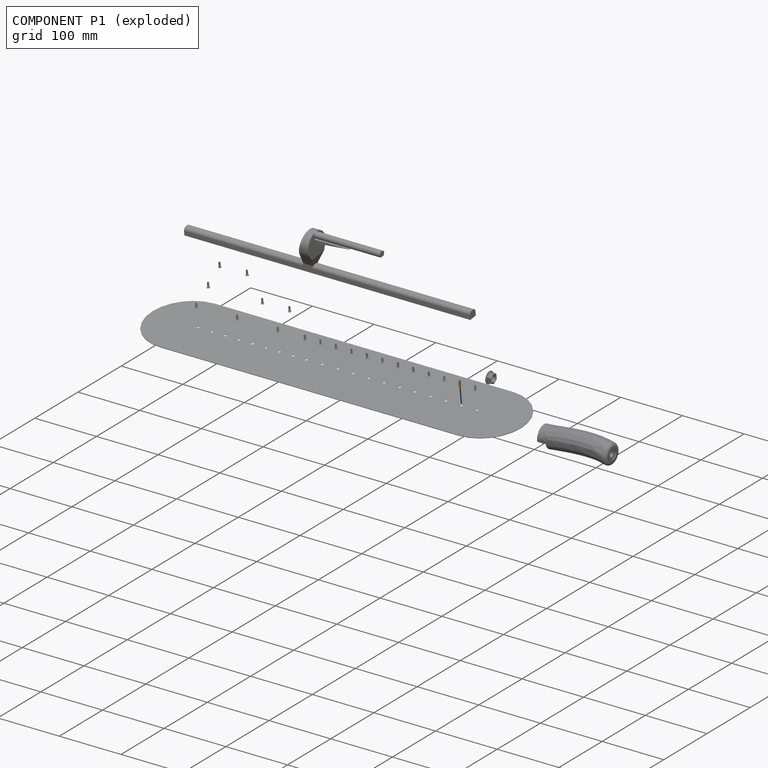
[diagram: component P1 — exploded]
COMPONENT P1 — geometry summary (no construction recipe available for this part):
  bounding box: 8.3 x 4.8 x 4.8 mm
  B-rep topology: 1 solid, 165 faces, 746 edges
  volume: 56 mm^3 (29% of its bounding box)
  symmetry: revolution-symmetric about the z axis through its bounding-box center; mirror-symmetric across its x mid-plane, y mid-plane
Held by: FASTENED mate "Fastened 20" to P16.
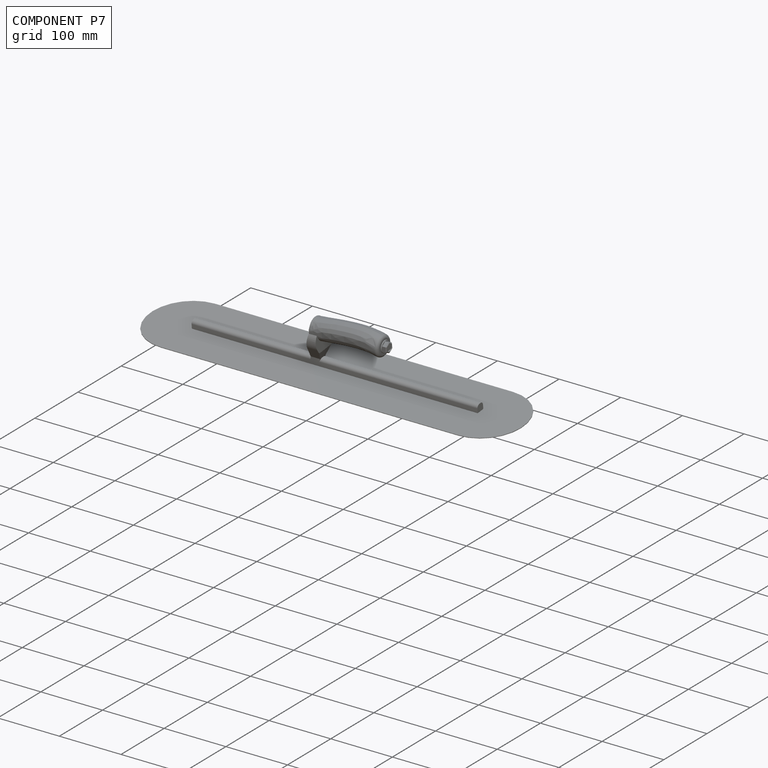
[diagram: component P7 — assembled]
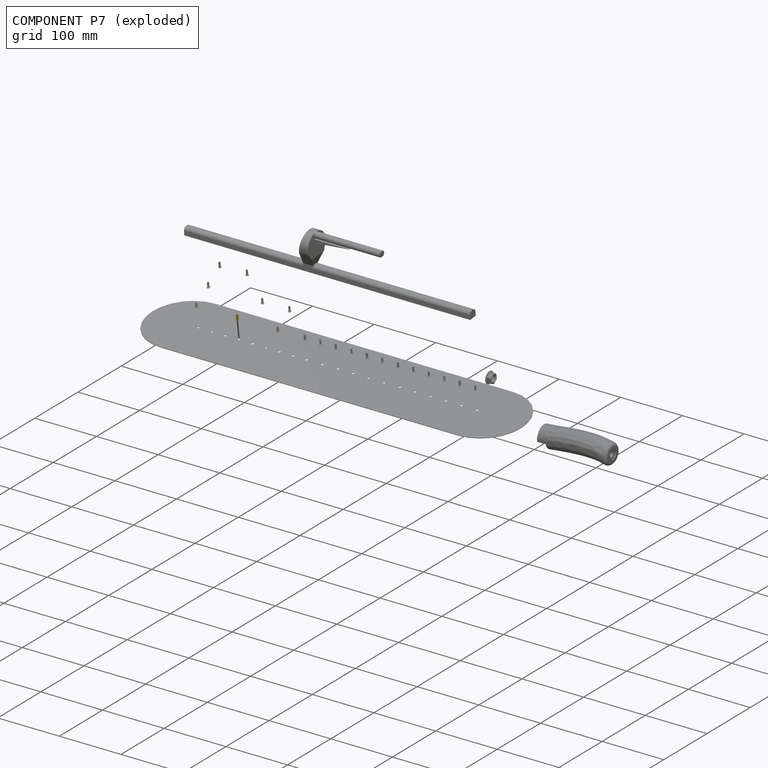
[diagram: component P7 — exploded]
COMPONENT P7 — geometry summary (no construction recipe available for this part):
  bounding box: 8.3 x 4.8 x 4.8 mm
  B-rep topology: 1 solid, 165 faces, 746 edges
  volume: 56 mm^3 (29% of its bounding box)
  symmetry: revolution-symmetric about the z axis through its bounding-box center; mirror-symmetric across its x mid-plane, y mid-plane
Held by: FASTENED mate "Fastened 5" to P16.
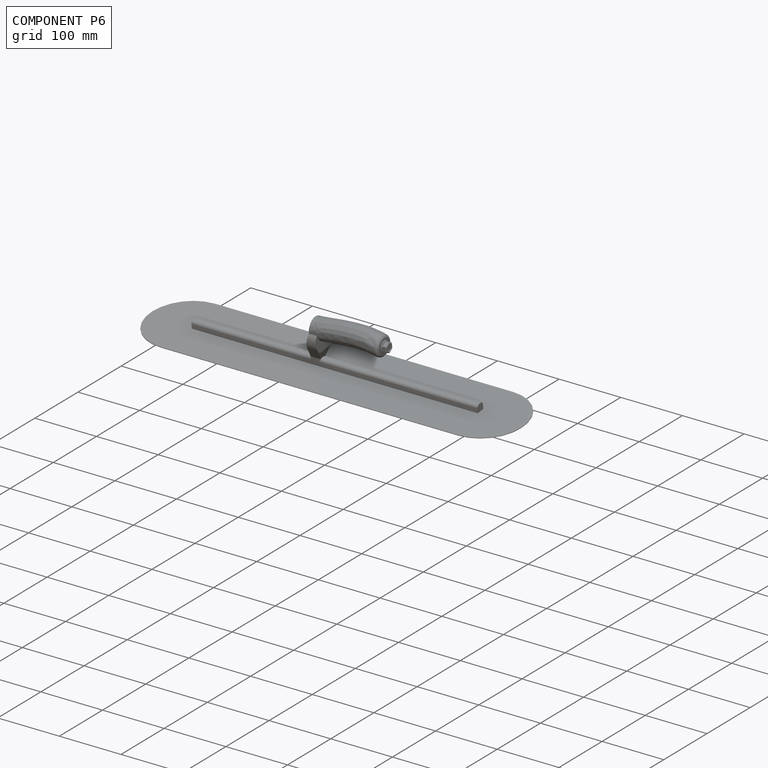
[diagram: component P6 — assembled]
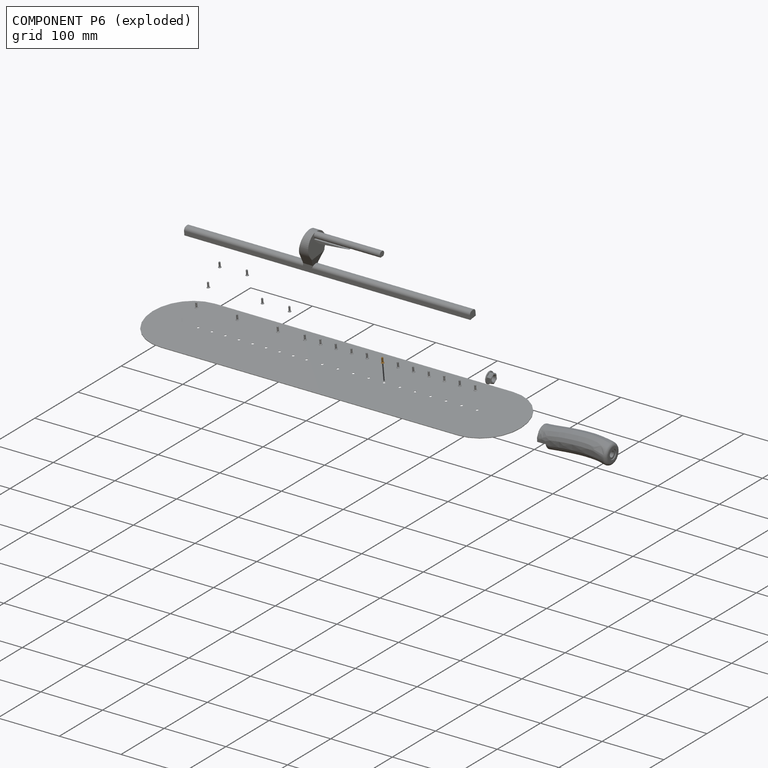
[diagram: component P6 — exploded]
COMPONENT P6 — geometry summary (no construction recipe available for this part):
  bounding box: 8.3 x 4.8 x 4.8 mm
  B-rep topology: 1 solid, 165 faces, 746 edges
  volume: 56 mm^3 (29% of its bounding box)
  symmetry: revolution-symmetric about the z axis through its bounding-box center; mirror-symmetric across its x mid-plane, y mid-plane
Held by: FASTENED mate "Fastened 15" to P16.
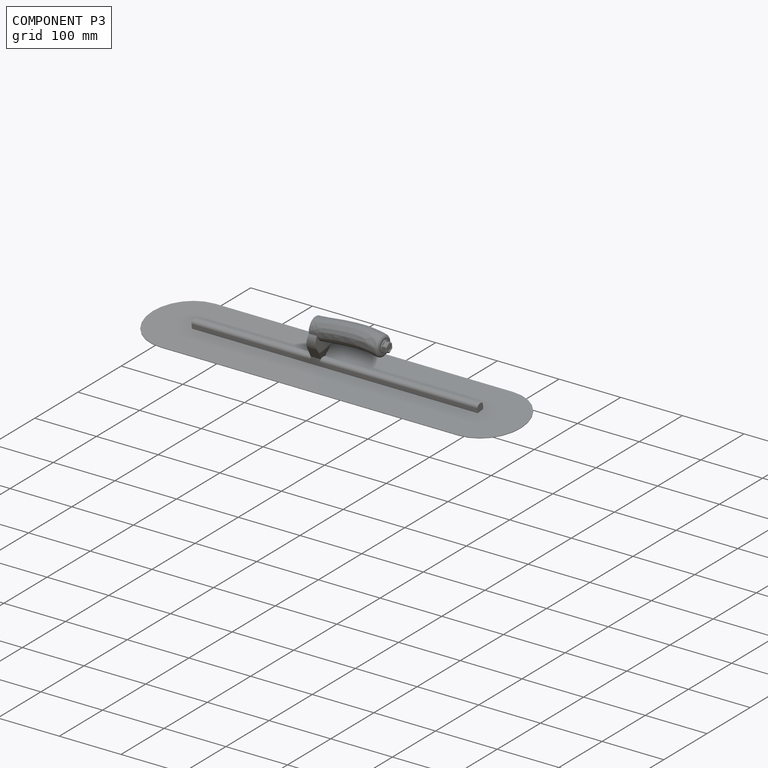
[diagram: component P3 — assembled]
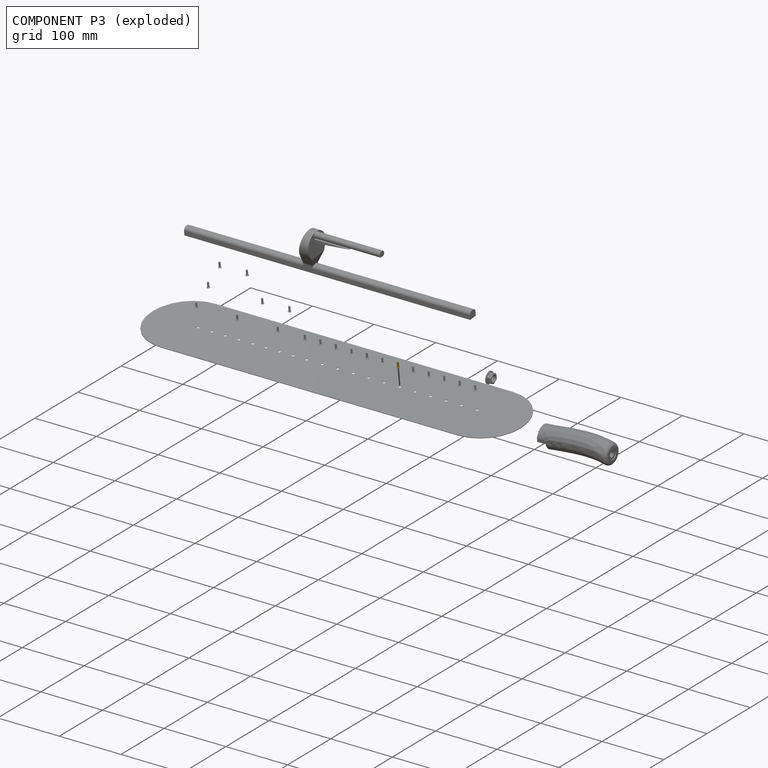
[diagram: component P3 — exploded]
COMPONENT P3 — geometry summary (no construction recipe available for this part):
  bounding box: 8.3 x 4.8 x 4.8 mm
  B-rep topology: 1 solid, 165 faces, 746 edges
  volume: 56 mm^3 (29% of its bounding box)
  symmetry: revolution-symmetric about the z axis through its bounding-box center; mirror-symmetric across its x mid-plane, y mid-plane
Held by: FASTENED mate "Fastened 16" to P16.
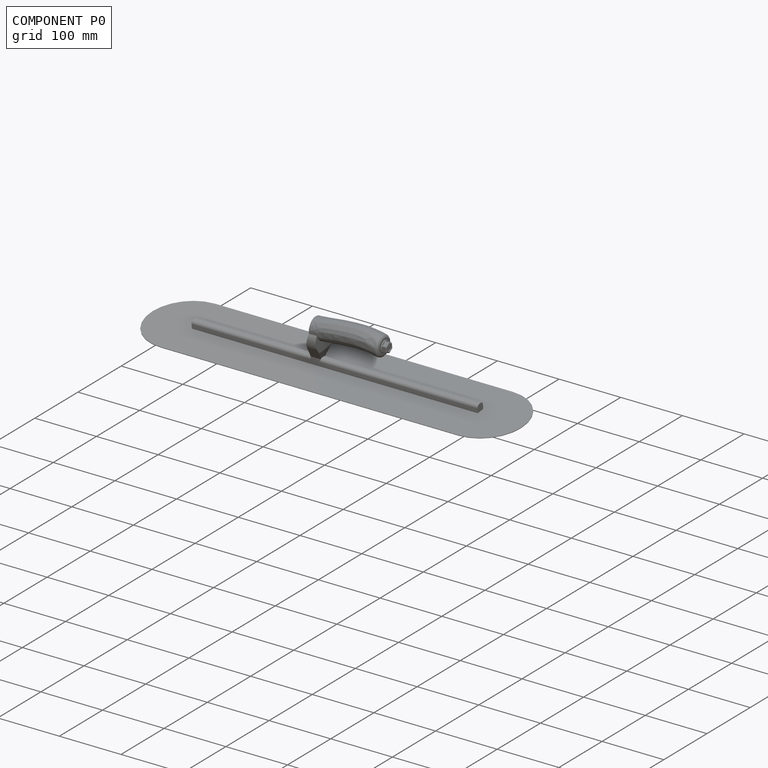
[diagram: component P0 — assembled]
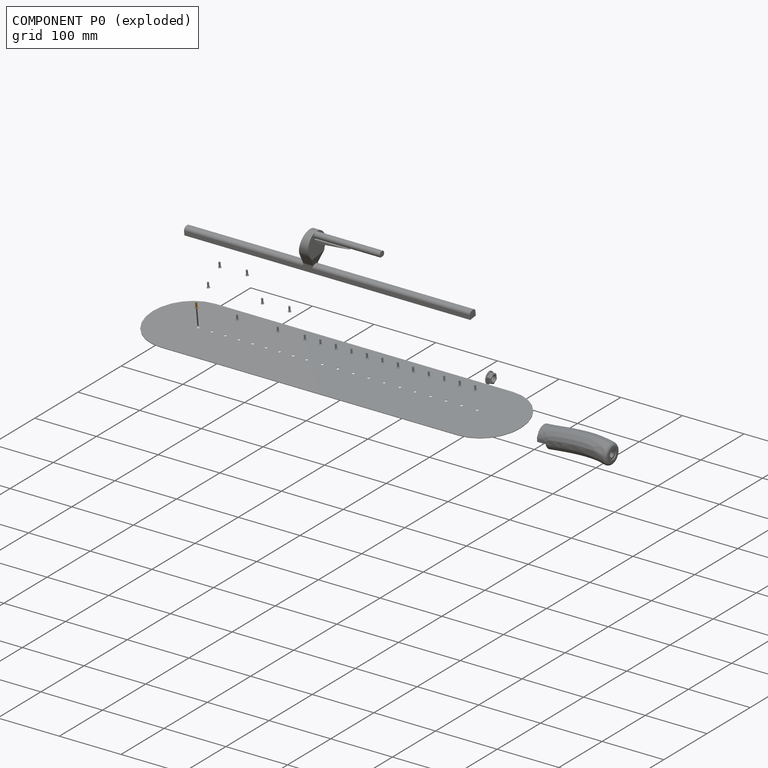
[diagram: component P0 — exploded]
COMPONENT P0 — geometry summary (no construction recipe available for this part):
  bounding box: 8.3 x 4.8 x 4.8 mm
  B-rep topology: 1 solid, 165 faces, 746 edges
  volume: 56 mm^3 (29% of its bounding box)
  symmetry: revolution-symmetric about the z axis through its bounding-box center; mirror-symmetric across its x mid-plane, y mid-plane
Held by: FASTENED mate "Fastened 2" to P16.
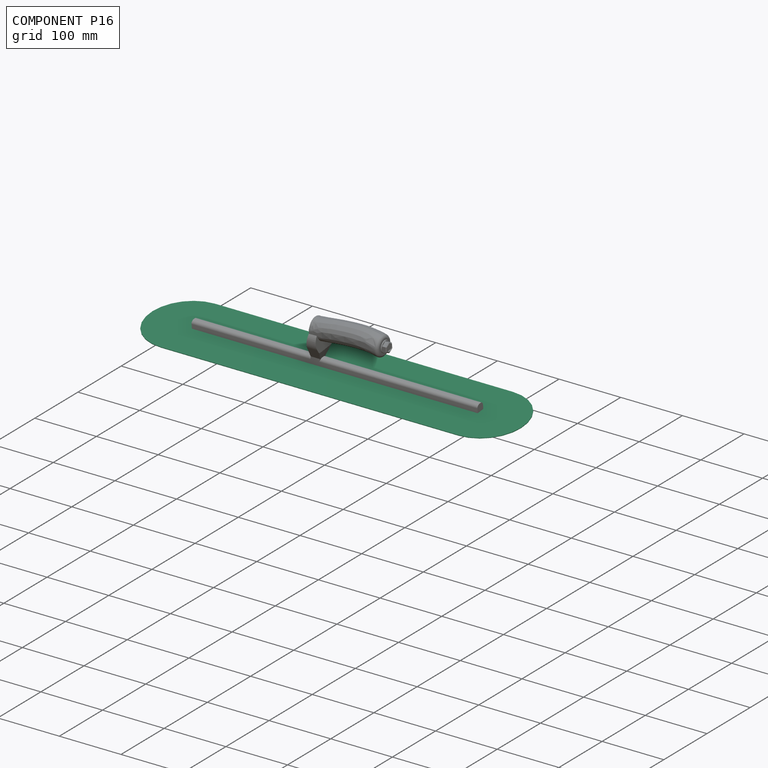
[diagram: component P16 — assembled]
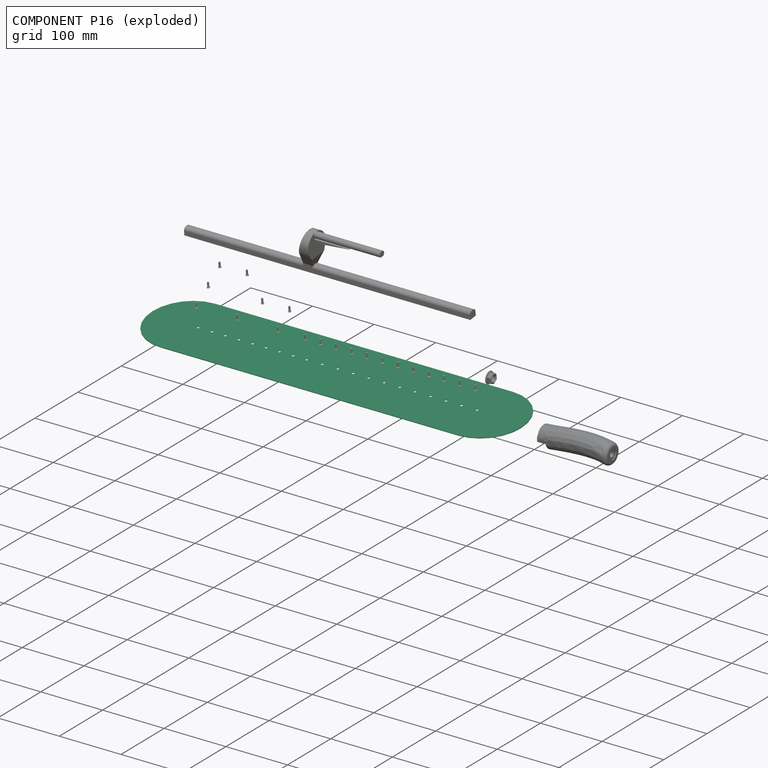
[diagram: component P16 — exploded]
COMPONENT P16 — recipe-attached (CADFS 00134731, mesh-verified: the recipe's output STEP matches this component's geometry to below the mesh-comparison resolution (tessellation chordal tolerance ~0.933 mm)).
Held by: FASTENED mate "Fastened 14" to P23; FASTENED mate "Fastened 15" to P6; FASTENED mate "Fastened 1" to P18; FASTENED mate "Fastened 4" to P9; FASTENED mate "Fastened 2" to P0; FASTENED mate "Fastened 19" to P22; FASTENED mate "Fastened 11" to P2; FASTENED mate "Fastened 13" to P14; FASTENED mate "Fastened 3" to P4; FASTENED mate "Fastened 5" to P7; FASTENED mate "Fastened 18" to P20; FASTENED mate "Fastened 12" to P19; FASTENED mate "Fastened 20" to P1; PLANAR mate "Planar 1" to P18; FASTENED mate "Fastened 6" to P17; FASTENED mate "Fastened 17" to P15; FASTENED mate "Fastened 16" to P3; FASTENED mate "Fastened 7" to P11; FASTENED mate "Fastened 10" to P5; FASTENED mate "Fastened 21" to P12; FASTENED mate "Fastened 9" to P10; FASTENED mate "Fastened 8" to P8.
Construction recipe (FeatureScript — the CAD program that rebuilds this solid; sketch coordinates are in the units given by the * unit suffixes, e.g. mm):

FeatureScript 1511;
import(path : "onshape/std/geometry.fs", version : "1511.0");
import(path : "onshape/std/common.fs", version : "1511.0");
const mm = millimeter;
const VERTEX = EntityType.VERTEX;
const EDGE = EntityType.EDGE;
const FACE = EntityType.FACE;
const BODY = EntityType.BODY;
function v(x, y){return vector(x, y);}
function OD(order){return orderDisambiguation(order);}
function OSD(set){return originalSetDisambiguation(set);}
function TD(topology){return topologyDisambiguation(topology);}
function TDD(query){return trueDependencyDisambiguation(query);}
function sQuery(a, b, c) {return sketchEntityQuery(a, b, c);}

annotation { "Feature Type Name" : "Feature", "Feature Type Description" : "" }
export const myFeature = defineFeature(function(context is Context, id is Id, definition is map)
    precondition{}
    {
        {
            var Q0;
            Q0=qCreatedBy(makeId("Top.planeOp"),FACE);
            var sketch = newSketch(context, id + "F0", { "sketchPlane" : qUnion([Q0])});
            skLineSegment(sketch, "E0", {"start": v(-241.3, 0) * mm, "end": v(241.3, 0) * mm, "construction": true});
            skArc(sketch, "E1.0.startCap", {"start": v(-241.3, -63.5) * mm, "mid": v(-304.8, 0) * mm, "end": v(-241.3, 63.5) * mm});
            skArc(sketch, "E1.0.endCap", {"start": v(241.3, 63.5) * mm, "mid": v(304.8, 0) * mm, "end": v(241.3, -63.5) * mm});
            skLineSegment(sketch, "E1.0.left", {"start": v(-241.3, 63.5) * mm, "end": v(241.3, 63.5) * mm});
            skLineSegment(sketch, "E1.0.right", {"start": v(-241.3, -63.5) * mm, "end": v(241.3, -63.5) * mm});
            skSolve(sketch);
        }
        {
            var Q0;
            Q0 = qSketchRegion(id + "F0", true);
            extrude(context, id + "F1", {"entities" : qUnion([Q0]), "depth" : 0.91 * mm});
        }
        {
            var Q0;
            Q0=makeQuery(id+"F1.opExtrude","CAP_FACE",FACE,{"disambiguationData":[OSD([sQuery(id+"F0.wireOp",EDGE,"E1.0.startCap"),sQuery(id+"F0.wireOp",EDGE,"E1.0.endCap"),sQuery(id+"F0.wireOp",EDGE,"E1.0.left"),sQuery(id+"F0.wireOp",EDGE,"E1.0.right")])],"isStart":false});
            var sketch = newSketch(context, id + "F2", { "sketchPlane" : qUnion([Q0])});
            skPoint(sketch, "E2", {"position": v(0.18, -2.06) * mm});
            skPoint(sketch, "E3", {"position": v(25.45, -2.06) * mm});
            skPoint(sketch, "E4", {"position": v(50.55, -2.06) * mm});
            skPoint(sketch, "E5", {"position": v(75.57, -2.06) * mm});
            skPoint(sketch, "E6", {"position": v(100.86, -2.06) * mm});
            skPoint(sketch, "E7", {"position": v(125.53, -2.06) * mm});
            skPoint(sketch, "E8", {"position": v(150.83, -2.06) * mm});
            skPoint(sketch, "E9", {"position": v(175.87, -2.06) * mm});
            skPoint(sketch, "E10", {"position": v(200.94, -2.06) * mm});
            skPoint(sketch, "E11", {"position": v(226.14, -2.06) * mm});
            skPoint(sketch, "E12", {"position": v(-24.96, -2.06) * mm});
            skPoint(sketch, "E13", {"position": v(-50.18, -2.06) * mm});
            skPoint(sketch, "E14", {"position": v(-159.91, -2.06) * mm});
            skPoint(sketch, "E15", {"position": v(-71.93, -2.06) * mm});
            skPoint(sketch, "E16", {"position": v(-226.16, -2.06) * mm});
            skPoint(sketch, "E17", {"position": v(-94, -2.06) * mm});
            skPoint(sketch, "E18", {"position": v(-203.8, -2.06) * mm});
            skPoint(sketch, "E19", {"position": v(-116.05, -2.06) * mm});
            skPoint(sketch, "E20", {"position": v(-182.09, -2.06) * mm});
            skPoint(sketch, "E21", {"position": v(-137.66, -2.06) * mm});
            skPoint(sketch, "E22.0", {"position": v(-304.8, 0) * mm});
            skPoint(sketch, "E23.0", {"position": v(304.8, 0) * mm});
            skSolve(sketch);
        }
        {
            var Q0;
            Q0=sQuery(id+"F2.wireOp",VERTEX,"E16");
            var Q1;
            Q1=sQuery(id+"F2.wireOp",VERTEX,"E18");
            var Q2;
            Q2=sQuery(id+"F2.wireOp",VERTEX,"E20");
            var Q3;
            Q3=sQuery(id+"F2.wireOp",VERTEX,"E14");
            var Q4;
            Q4=sQuery(id+"F2.wireOp",VERTEX,"E21");
            var Q5;
            Q5=sQuery(id+"F2.wireOp",VERTEX,"E19");
            var Q6;
            Q6=sQuery(id+"F2.wireOp",VERTEX,"E17");
            var Q7;
            Q7=sQuery(id+"F2.wireOp",VERTEX,"E15");
            var Q8;
            Q8=sQuery(id+"F2.wireOp",VERTEX,"E13");
            var Q9;
            Q9=sQuery(id+"F2.wireOp",VERTEX,"E12");
            var Q10;
            Q10=sQuery(id+"F2.wireOp",VERTEX,"E2");
            var Q11;
            Q11=sQuery(id+"F2.wireOp",VERTEX,"E3");
            var Q12;
            Q12=sQuery(id+"F2.wireOp",VERTEX,"E4");
            var Q13;
            Q13=sQuery(id+"F2.wireOp",VERTEX,"E5");
            var Q14;
            Q14=sQuery(id+"F2.wireOp",VERTEX,"E6");
            var Q15;
            Q15=sQuery(id+"F2.wireOp",VERTEX,"E7");
            var Q16;
            Q16=sQuery(id+"F2.wireOp",VERTEX,"E8");
            var Q17;
            Q17=sQuery(id+"F2.wireOp",VERTEX,"E9");
            var Q18;
            Q18=sQuery(id+"F2.wireOp",VERTEX,"E10");
            var Q19;
            Q19=sQuery(id+"F2.wireOp",VERTEX,"E11");
            var Q20;
            Q20=makeQuery(id+"F1.opExtrude","SWEPT_BODY",BODY,{"disambiguationData":[OSD([sQuery(id+"F0.wireOp",EDGE,"E1.0.startCap"),sQuery(id+"F0.wireOp",EDGE,"E1.0.endCap"),sQuery(id+"F0.wireOp",EDGE,"E1.0.left"),sQuery(id+"F0.wireOp",EDGE,"E1.0.right")])]});
            hole(context, id + "F3", {"style" : HoleStyle.C_SINK, "endStyle" : HoleEndStyle.THROUGH, "holeDiameter" : 3.56 * mm, "cSinkDiameter" : 4.83 * mm, "cSinkAngle" : 100 * degree, "majorDiameter" : 6.35 * mm, "locations" : qUnion([Q0, Q1, Q2, Q3, Q4, Q5, Q6, Q7, Q8, Q9, Q10, Q11, Q12, Q13, Q14, Q15, Q16, Q17, Q18, Q19]), "scope" : qUnion([Q20]), "isTappedThrough" : true, "tappedDepth" : 12.7 * mm, "tapClearance" : 3});
        }
    });
